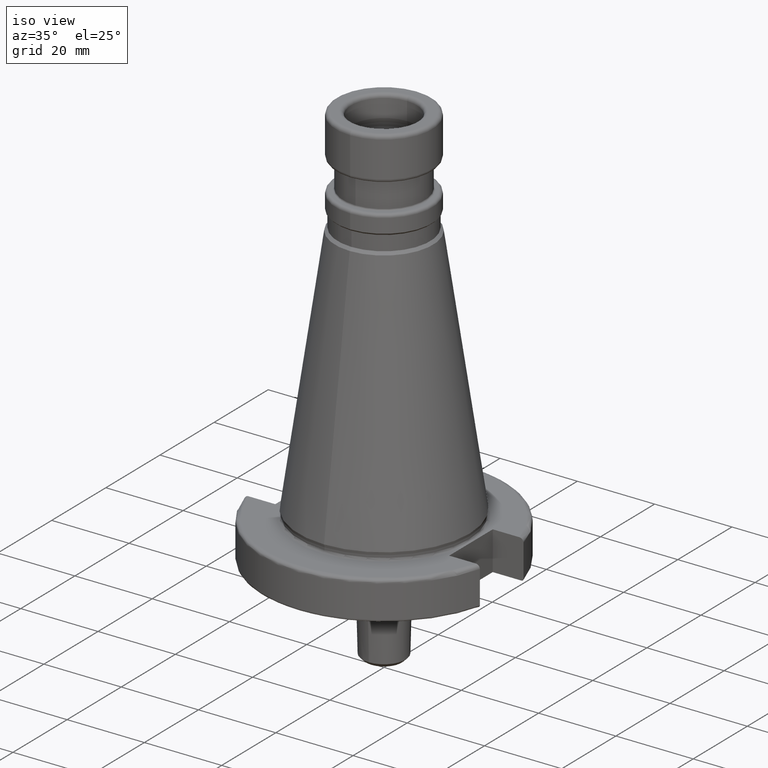
[diagram: clean part render]
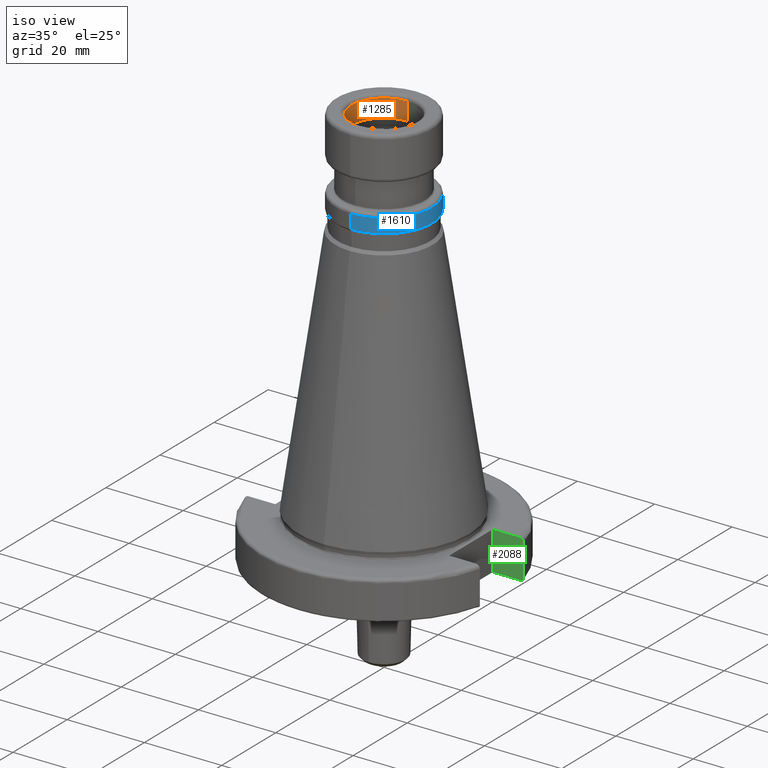
[diagram: same view with three faces highlighted in distinct colors, each labeled with its STEP entity id]
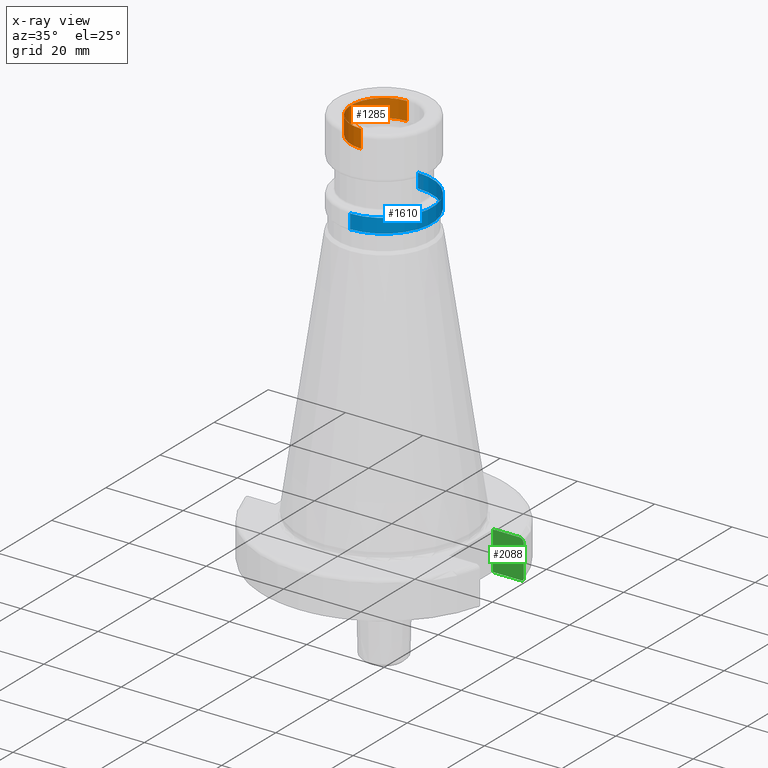
[diagram: x-ray of the same camera — body ghosted, the three highlighted faces saturated]
A machine part, iso view with three faces highlighted in distinct colors.
The next image is the same camera in x-ray (body ghosted, the three faces saturated) — at least one of them is partly hidden behind the body in this view.
Their STEP definitions:

[orange] entity #1285 — the highlighted cylindrical surface (partial cylindrical patch) has radius 8.5 mm, axis along (0, 0, -1).
#126=CARTESIAN_POINT('',(0,0,99.3));
#127=DIRECTION('',(0,0,1));
#128=DIRECTION('',(0,1,0));
#129=AXIS2_PLACEMENT_3D('',#126,#127,#128);
#131=CARTESIAN_POINT('',(0,0,104));
#132=DIRECTION('',(0,0,1));
#133=DIRECTION('',(0,1,0));
#134=AXIS2_PLACEMENT_3D('',#131,#132,#133);
#136=DIRECTION('',(0.0000000000001412028123513,0,-1));
#137=VECTOR('',#136,4.7);
#138=CARTESIAN_POINT('',(-0.0000000000006626122682720,8.5,104));
#139=LINE('',#138,#137);
#140=DIRECTION('',(-0.0000000000001415497508926,0,-1));
#141=VECTOR('',#140,4.7);
#142=CARTESIAN_POINT('',(0.0000000000006642428794160,-8.5,104));
#143=LINE('',#142,#141);
#915=CARTESIAN_POINT('',(0,8.5,99.3));
#917=VERTEX_POINT('',#915);
#963=CARTESIAN_POINT('',(0,-8.5,99.3));
#965=VERTEX_POINT('',#963);
#975=CARTESIAN_POINT('',(0,-8.5,104));
#976=CARTESIAN_POINT('',(0,8.5,104));
#977=VERTEX_POINT('',#975);
#978=VERTEX_POINT('',#976);
#1271=CARTESIAN_POINT('',(0,0,110.25));
#1272=DIRECTION('',(0,0,-1));
#1273=DIRECTION('',(0,-1,0));
#1274=AXIS2_PLACEMENT_3D('',#1271,#1272,#1273);
#1275=CYLINDRICAL_SURFACE('',#1274,8.5);
#1277=ORIENTED_EDGE('',*,*,#1276,.F.);
#1279=ORIENTED_EDGE('',*,*,#1278,.T.);
#1280=ORIENTED_EDGE('',*,*,#1266,.T.);
#1282=ORIENTED_EDGE('',*,*,#1281,.F.);
#1283=EDGE_LOOP('',(#1277,#1279,#1280,#1282));
#1284=FACE_OUTER_BOUND('',#1283,.F.);
#1285=ADVANCED_FACE('',(#1284),#1275,.F.);
#130=CIRCLE('',#129,8.5);
#135=CIRCLE('',#134,8.5);
#1266=EDGE_CURVE('',#917,#965,#130,.T.);
#1276=EDGE_CURVE('',#978,#977,#135,.T.);
#1278=EDGE_CURVE('',#978,#917,#139,.T.);
#1281=EDGE_CURVE('',#977,#965,#143,.T.);

[blue] entity #1610 — the highlighted cylindrical surface (partial cylindrical patch) has radius 12.5 mm, axis along (0, 0, -1).
#323=CARTESIAN_POINT('',(0,0,85.7));
#324=DIRECTION('',(0,0,-1));
#325=DIRECTION('',(0,1,0));
#326=AXIS2_PLACEMENT_3D('',#323,#324,#325);
#343=DIRECTION('',(0,0,1));
#344=VECTOR('',#343,3.7);
#345=CARTESIAN_POINT('',(0,12.5,82));
#346=LINE('',#345,#344);
#347=DIRECTION('',(0,0,1));
#348=VECTOR('',#347,3.7);
#349=CARTESIAN_POINT('',(0,-12.5,82));
#350=LINE('',#349,#348);
#356=CARTESIAN_POINT('',(0,0,82));
#357=DIRECTION('',(0,0,-1));
#358=DIRECTION('',(0,1,0));
#359=AXIS2_PLACEMENT_3D('',#356,#357,#358);
#897=CARTESIAN_POINT('',(0,12.5,82));
#898=VERTEX_POINT('',#897);
#899=CARTESIAN_POINT('',(0,12.5,85.7));
#900=VERTEX_POINT('',#899);
#945=CARTESIAN_POINT('',(0,-12.5,82));
#946=VERTEX_POINT('',#945);
#947=CARTESIAN_POINT('',(0,-12.5,85.7));
#948=VERTEX_POINT('',#947);
#1598=CARTESIAN_POINT('',(0,0,110.25));
#1599=DIRECTION('',(0,0,-1));
#1600=DIRECTION('',(0,-1,0));
#1601=AXIS2_PLACEMENT_3D('',#1598,#1599,#1600);
#1602=CYLINDRICAL_SURFACE('',#1601,12.5);
#1603=ORIENTED_EDGE('',*,*,#1588,.F.);
#1605=ORIENTED_EDGE('',*,*,#1604,.T.);
#1606=ORIENTED_EDGE('',*,*,#1591,.T.);
#1607=ORIENTED_EDGE('',*,*,#1562,.F.);
#1608=EDGE_LOOP('',(#1603,#1605,#1606,#1607));
#1609=FACE_OUTER_BOUND('',#1608,.F.);
#1610=ADVANCED_FACE('',(#1609),#1602,.T.);
#327=CIRCLE('',#326,12.5);
#360=CIRCLE('',#359,12.5);
#1562=EDGE_CURVE('',#900,#948,#327,.T.);
#1588=EDGE_CURVE('',#898,#900,#346,.T.);
#1591=EDGE_CURVE('',#946,#948,#350,.T.);
#1604=EDGE_CURVE('',#898,#946,#360,.T.);

[green] entity #2088 — the highlighted planar face has unit normal (0, 1, 0).
#534=DIRECTION('',(-1,0,0));
#535=VECTOR('',#534,7.436557918371);
#536=CARTESIAN_POINT('',(29.93655791837,8.05,0));
#537=LINE('',#536,#535);
#580=DIRECTION('',(-1,0,0));
#581=VECTOR('',#580,6.918489084248);
#582=CARTESIAN_POINT('',(29.41848908425,8.05,10));
#583=LINE('',#582,#581);
#607=DIRECTION('',(0,0,-1));
#608=VECTOR('',#607,10);
#609=CARTESIAN_POINT('',(22.5,8.05,10));
#610=LINE('',#609,#608);
#668=CARTESIAN_POINT('',(30.45402272279,8.05,0.5));
#669=CARTESIAN_POINT('',(30.45402272279,8.05,0.4614131029941));
#670=CARTESIAN_POINT('',(30.44506277641,8.05,0.3865490070227));
#671=CARTESIAN_POINT('',(30.40543296220,8.05,0.2783586146477));
#672=CARTESIAN_POINT('',(30.34218372508,8.05,0.1827362511104));
#673=CARTESIAN_POINT('',(30.25921353251,8.05,0.1037567468806));
#674=CARTESIAN_POINT('',(30.16099862580,8.05,0.04485296280828));
#675=CARTESIAN_POINT('',(30.05161500374,8.05,0.008336959581502));
#676=CARTESIAN_POINT('',(29.97566105468,8.05,0));
#677=CARTESIAN_POINT('',(29.93655791837,8.05,0));
#691=DIRECTION('',(0,0,-1));
#692=VECTOR('',#691,8.5);
#693=CARTESIAN_POINT('',(30.45402272279,8.05,9));
#694=LINE('',#693,#692);
#751=CARTESIAN_POINT('',(29.41848908425,8.05,10));
#752=CARTESIAN_POINT('',(29.48746900286,8.05,10));
#753=CARTESIAN_POINT('',(29.62252618905,8.05,9.987034910241));
#754=CARTESIAN_POINT('',(29.82047098457,8.05,9.928877763900));
#755=CARTESIAN_POINT('',(30.00157569792,8.05,9.834451695568));
#756=CARTESIAN_POINT('',(30.15911124968,8.05,9.708329536691));
#757=CARTESIAN_POINT('',(30.28716348063,8.05,9.556081177445));
#758=CARTESIAN_POINT('',(30.38189440266,8.05,9.383880744593));
#759=CARTESIAN_POINT('',(30.44067909365,8.05,9.195764788873));
#760=CARTESIAN_POINT('',(30.45402272279,8.05,9.066295674189));
#761=CARTESIAN_POINT('',(30.45402272279,8.05,9));
#991=CARTESIAN_POINT('',(22.5,8.05,0));
#993=VERTEX_POINT('',#991);
#997=CARTESIAN_POINT('',(29.93655791837,8.05,0));
#998=VERTEX_POINT('',#997);
#1003=CARTESIAN_POINT('',(30.45402272279,8.05,9));
#1004=CARTESIAN_POINT('',(30.45402272279,8.05,0.5));
#1005=VERTEX_POINT('',#1003);
#1006=VERTEX_POINT('',#1004);
#1019=CARTESIAN_POINT('',(22.5,8.05,10));
#1021=VERTEX_POINT('',#1019);
#1029=CARTESIAN_POINT('',(29.41848908425,8.05,10));
#1030=VERTEX_POINT('',#1029);
#2075=CARTESIAN_POINT('',(38.6,8.05,105));
#2076=DIRECTION('',(0,1,0));
#2077=DIRECTION('',(-1,0,0));
#2078=AXIS2_PLACEMENT_3D('',#2075,#2076,#2077);
#2079=PLANE('',#2078);
#2080=ORIENTED_EDGE('',*,*,#1858,.T.);
#2081=ORIENTED_EDGE('',*,*,#1957,.F.);
#2082=ORIENTED_EDGE('',*,*,#1921,.F.);
#2083=ORIENTED_EDGE('',*,*,#2056,.T.);
#2084=ORIENTED_EDGE('',*,*,#2030,.T.);
#2085=ORIENTED_EDGE('',*,*,#2002,.T.);
#2086=EDGE_LOOP('',(#2080,#2081,#2082,#2083,#2084,#2085));
#2087=FACE_OUTER_BOUND('',#2086,.F.);
#2088=ADVANCED_FACE('',(#2087),#2079,.F.);
#678=B_SPLINE_CURVE_WITH_KNOTS('',3,(#668,#669,#670,#671,#672,#673,#674,#675,
#676,#677),.UNSPECIFIED.,.F.,.F.,(4,1,1,1,1,1,1,4),(0,0.1428571428571,
0.2857142857143,0.4285714285714,0.5714285714286,0.7142857142857,
0.8571428571429,1),.UNSPECIFIED.);
#762=B_SPLINE_CURVE_WITH_KNOTS('',3,(#751,#752,#753,#754,#755,#756,#757,#758,
#759,#760,#761),.UNSPECIFIED.,.F.,.F.,(4,1,1,1,1,1,1,1,4),(0,0.125,0.25,
0.375,0.5,0.625,0.75,0.875,1),.UNSPECIFIED.);
#1858=EDGE_CURVE('',#998,#993,#537,.T.);
#1921=EDGE_CURVE('',#1030,#1021,#583,.T.);
#1957=EDGE_CURVE('',#1021,#993,#610,.T.);
#2002=EDGE_CURVE('',#1006,#998,#678,.T.);
#2030=EDGE_CURVE('',#1005,#1006,#694,.T.);
#2056=EDGE_CURVE('',#1030,#1005,#762,.T.);